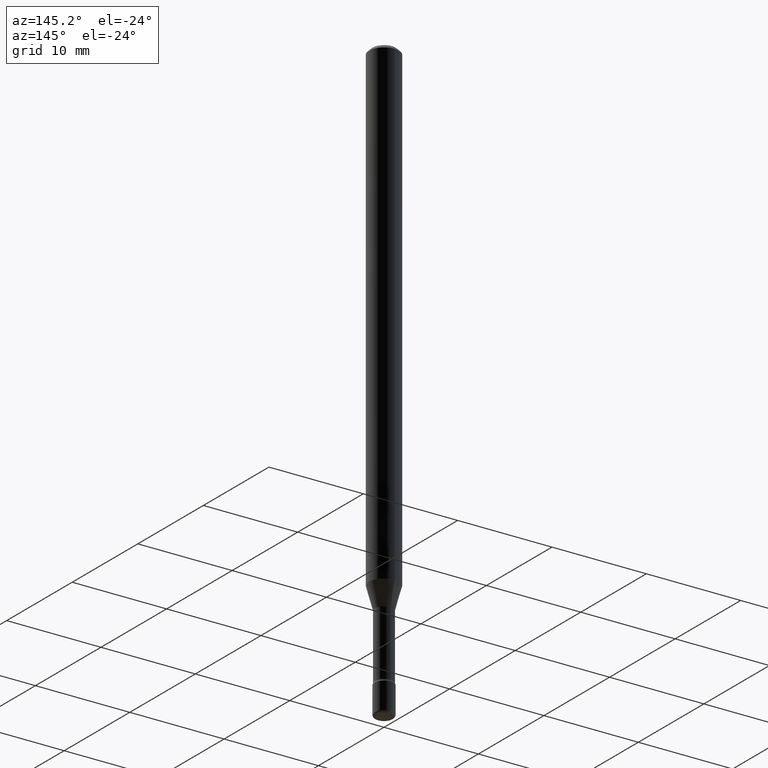
[diagram: clean part render]
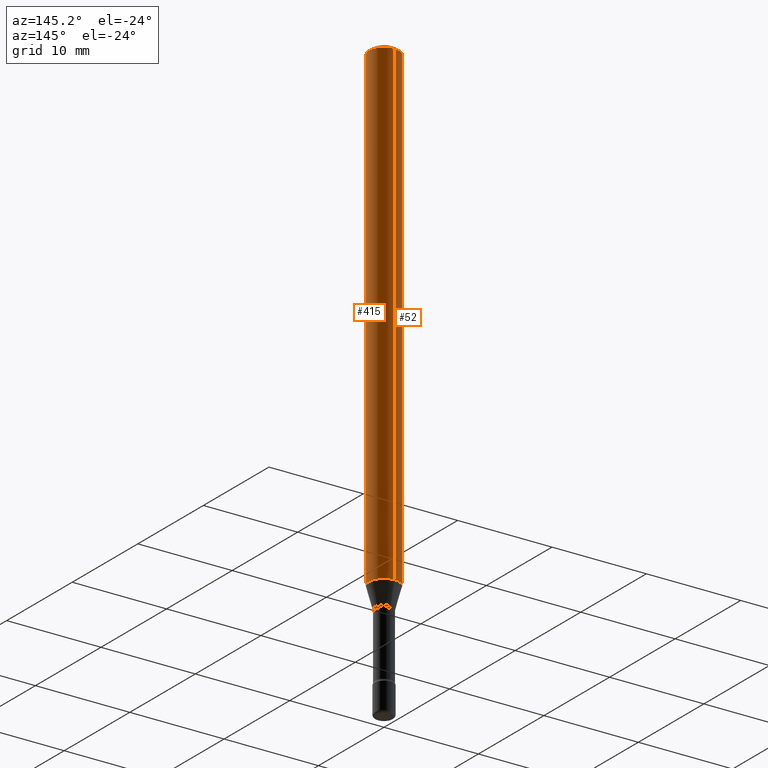
[diagram: same view with one multi-face feature highlighted, each face labeled with its STEP entity id]
A machine part, auxiliary view. The highlighted faces form ONE feature: a constant-radius fillet chain: 2 tangent blend faces with common blend radius 1.5875 mm. The faces share edges in the B-rep.
Their STEP definitions:
[1] entity #52 (Cylinder):
#19 = EDGE_CURVE ( 'NONE', #232, #279, #332, .T. ) ;
#25 = FACE_OUTER_BOUND ( 'NONE', #221, .T. ) ;
#28 = CARTESIAN_POINT ( 'NONE',  ( 4.440892098501114269E-16, 0.06249999999999295702, -2.007071934891535125 ) ) ;
#52 = ADVANCED_FACE ( 'NONE', ( #25 ), #467, .T. ) ;
#78 = DIRECTION ( 'NONE',  ( -2.445315096420110130E-29, 3.491701459975279518E-15, 1.000000000000000000 ) ) ;
#80 = EDGE_CURVE ( 'NONE', #355, #232, #292, .T. ) ;
#106 = CARTESIAN_POINT ( 'NONE',  ( 4.440892098501120186E-16, 0.06249999999999995143, -0.01500000000000024578 ) ) ;
#121 = CARTESIAN_POINT ( 'NONE',  ( -4.364351673553916201E-16, -0.06250000000000000000, 6.963047401397009838E-16 ) ) ;
#130 = ORIENTED_EDGE ( 'NONE', *, *, #80, .T. ) ;
#133 = DIRECTION ( 'NONE',  ( -2.445315096420110410E-29, 3.491701459975279518E-15, 1.000000000000000000 ) ) ;
#146 = AXIS2_PLACEMENT_3D ( 'NONE', #306, #133, #307 ) ;
#181 = CARTESIAN_POINT ( 'NONE',  ( 3.667972644630171939E-31, -5.237552189962929655E-17, -0.01500000000000002720 ) ) ;
#196 = LINE ( 'NONE', #328, #434 ) ;
#205 = CIRCLE ( 'NONE', #326, 0.06250000000000000000 ) ;
#214 = DIRECTION ( 'NONE',  ( -6.982962677686265922E-15, -1.000000000000000000, 4.370956789862821150E-15 ) ) ;
#221 = EDGE_LOOP ( 'NONE', ( #510, #130, #506, #345 ) ) ;
#232 = VERTEX_POINT ( 'NONE', #443 ) ;
#237 = CARTESIAN_POINT ( 'NONE',  ( -4.364351673553912750E-16, -0.06250000000000005551, -0.01499999999999981036 ) ) ;
#260 = CARTESIAN_POINT ( 'NONE',  ( 4.907923301991391029E-29, -7.008096005336182102E-15, -2.007071934891535125 ) ) ;
#279 = VERTEX_POINT ( 'NONE', #237 ) ;
#280 = EDGE_CURVE ( 'NONE', #355, #283, #196, .T. ) ;
#283 = VERTEX_POINT ( 'NONE', #106 ) ;
#292 = CIRCLE ( 'NONE', #366, 0.06250000000000000000 ) ;
#306 = CARTESIAN_POINT ( 'NONE',  ( -1.169113584055446105E-44, 1.669184350826100908E-30, 4.780733988912460139E-16 ) ) ;
#307 = DIRECTION ( 'NONE',  ( -6.982962677686265922E-15, -1.000000000000000000, 3.491701459975279518E-15 ) ) ;
#326 = AXIS2_PLACEMENT_3D ( 'NONE', #181, #529, #354 ) ;
#328 = CARTESIAN_POINT ( 'NONE',  ( 4.440892098500625669E-16, 0.06250000000000000000, 2.598420576427910934E-16 ) ) ;
#332 = LINE ( 'NONE', #121, #544 ) ;
#345 = ORIENTED_EDGE ( 'NONE', *, *, #468, .F. ) ;
#354 = DIRECTION ( 'NONE',  ( -6.982962677686265922E-15, -1.000000000000000000, 3.483106191921935554E-15 ) ) ;
#355 = VERTEX_POINT ( 'NONE', #28 ) ;
#366 = AXIS2_PLACEMENT_3D ( 'NONE', #260, #438, #214 ) ;
#434 = VECTOR ( 'NONE', #511, 39.37007874015748143 ) ;
#438 = DIRECTION ( 'NONE',  ( -2.445315096420110410E-29, 3.491701459975279518E-15, 1.000000000000000000 ) ) ;
#443 = CARTESIAN_POINT ( 'NONE',  ( -4.364351673553428586E-16, -0.06250000000000703604, -2.007071934891534681 ) ) ;
#467 = CYLINDRICAL_SURFACE ( 'NONE', #146, 0.06250000000000000000 ) ;
#468 = EDGE_CURVE ( 'NONE', #283, #279, #205, .T. ) ;
#506 = ORIENTED_EDGE ( 'NONE', *, *, #19, .T. ) ;
#510 = ORIENTED_EDGE ( 'NONE', *, *, #280, .F. ) ;
#511 = DIRECTION ( 'NONE',  ( -2.445315096420110130E-29, 3.491701459975279518E-15, 1.000000000000000000 ) ) ;
#529 = DIRECTION ( 'NONE',  ( -2.445315096420110410E-29, 3.491701459975279518E-15, 1.000000000000000000 ) ) ;
#544 = VECTOR ( 'NONE', #78, 39.37007874015748143 ) ;
[2] entity #415 (Cylinder):
#12 = DIRECTION ( 'NONE',  ( -6.982962677686265922E-15, -1.000000000000000000, 3.491701459975279518E-15 ) ) ;
#19 = EDGE_CURVE ( 'NONE', #232, #279, #332, .T. ) ;
#28 = CARTESIAN_POINT ( 'NONE',  ( 4.440892098501114269E-16, 0.06249999999999295702, -2.007071934891535125 ) ) ;
#65 = ORIENTED_EDGE ( 'NONE', *, *, #277, .F. ) ;
#78 = DIRECTION ( 'NONE',  ( -2.445315096420110130E-29, 3.491701459975279518E-15, 1.000000000000000000 ) ) ;
#91 = CARTESIAN_POINT ( 'NONE',  ( -1.169113584055446105E-44, 1.669184350826100908E-30, 4.780733988912460139E-16 ) ) ;
#99 = ORIENTED_EDGE ( 'NONE', *, *, #19, .F. ) ;
#106 = CARTESIAN_POINT ( 'NONE',  ( 4.440892098501120186E-16, 0.06249999999999995143, -0.01500000000000024578 ) ) ;
#121 = CARTESIAN_POINT ( 'NONE',  ( -4.364351673553916201E-16, -0.06250000000000000000, 6.963047401397009838E-16 ) ) ;
#122 = DIRECTION ( 'NONE',  ( -2.445315096420110410E-29, 3.491701459975279518E-15, 1.000000000000000000 ) ) ;
#123 = EDGE_CURVE ( 'NONE', #232, #355, #368, .T. ) ;
#135 = DIRECTION ( 'NONE',  ( -2.445315096420110410E-29, 3.491701459975279518E-15, 1.000000000000000000 ) ) ;
#147 = AXIS2_PLACEMENT_3D ( 'NONE', #504, #135, #357 ) ;
#196 = LINE ( 'NONE', #328, #434 ) ;
#232 = VERTEX_POINT ( 'NONE', #443 ) ;
#237 = CARTESIAN_POINT ( 'NONE',  ( -4.364351673553912750E-16, -0.06250000000000005551, -0.01499999999999981036 ) ) ;
#277 = EDGE_CURVE ( 'NONE', #279, #283, #545, .T. ) ;
#279 = VERTEX_POINT ( 'NONE', #237 ) ;
#280 = EDGE_CURVE ( 'NONE', #355, #283, #196, .T. ) ;
#281 = AXIS2_PLACEMENT_3D ( 'NONE', #91, #554, #12 ) ;
#283 = VERTEX_POINT ( 'NONE', #106 ) ;
#297 = DIRECTION ( 'NONE',  ( -6.982962677686265922E-15, -1.000000000000000000, 4.370956789862821150E-15 ) ) ;
#328 = CARTESIAN_POINT ( 'NONE',  ( 4.440892098500625669E-16, 0.06250000000000000000, 2.598420576427910934E-16 ) ) ;
#332 = LINE ( 'NONE', #121, #544 ) ;
#355 = VERTEX_POINT ( 'NONE', #28 ) ;
#357 = DIRECTION ( 'NONE',  ( -6.982962677686265922E-15, -1.000000000000000000, 3.483106191921935554E-15 ) ) ;
#368 = CIRCLE ( 'NONE', #555, 0.06250000000000000000 ) ;
#400 = FACE_OUTER_BOUND ( 'NONE', #540, .T. ) ;
#403 = ORIENTED_EDGE ( 'NONE', *, *, #280, .T. ) ;
#415 = ADVANCED_FACE ( 'NONE', ( #400 ), #497, .T. ) ;
#434 = VECTOR ( 'NONE', #511, 39.37007874015748143 ) ;
#443 = CARTESIAN_POINT ( 'NONE',  ( -4.364351673553428586E-16, -0.06250000000000703604, -2.007071934891534681 ) ) ;
#483 = ORIENTED_EDGE ( 'NONE', *, *, #123, .T. ) ;
#497 = CYLINDRICAL_SURFACE ( 'NONE', #281, 0.06250000000000000000 ) ;
#504 = CARTESIAN_POINT ( 'NONE',  ( 3.667972644630171939E-31, -5.237552189962929655E-17, -0.01500000000000002720 ) ) ;
#511 = DIRECTION ( 'NONE',  ( -2.445315096420110130E-29, 3.491701459975279518E-15, 1.000000000000000000 ) ) ;
#540 = EDGE_LOOP ( 'NONE', ( #483, #403, #65, #99 ) ) ;
#544 = VECTOR ( 'NONE', #78, 39.37007874015748143 ) ;
#545 = CIRCLE ( 'NONE', #147, 0.06250000000000000000 ) ;
#554 = DIRECTION ( 'NONE',  ( -2.445315096420110410E-29, 3.491701459975279518E-15, 1.000000000000000000 ) ) ;
#555 = AXIS2_PLACEMENT_3D ( 'NONE', #562, #122, #297 ) ;
#562 = CARTESIAN_POINT ( 'NONE',  ( 4.907923301991391029E-29, -7.008096005336182102E-15, -2.007071934891535125 ) ) ;